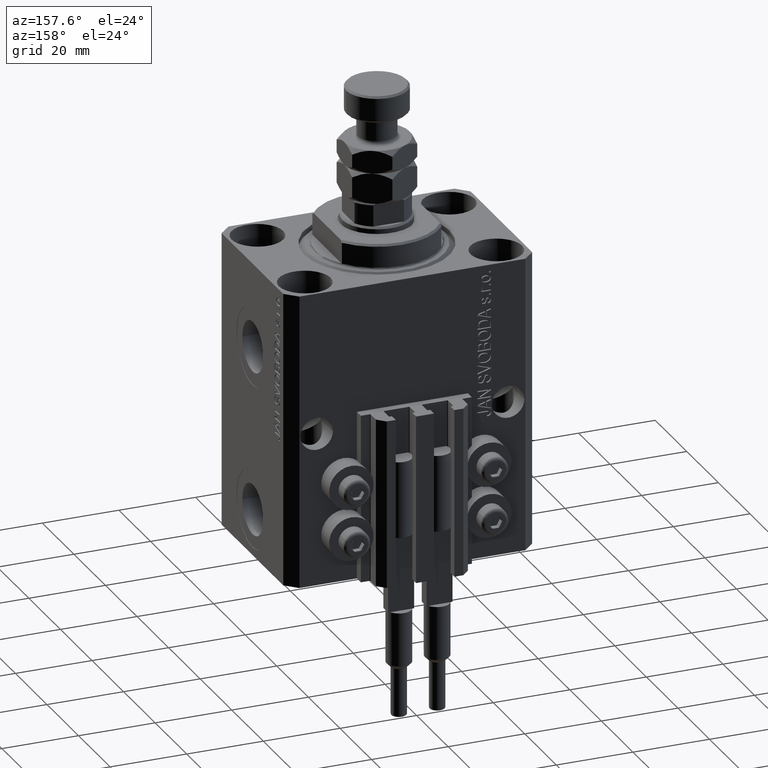
[diagram: clean part render]
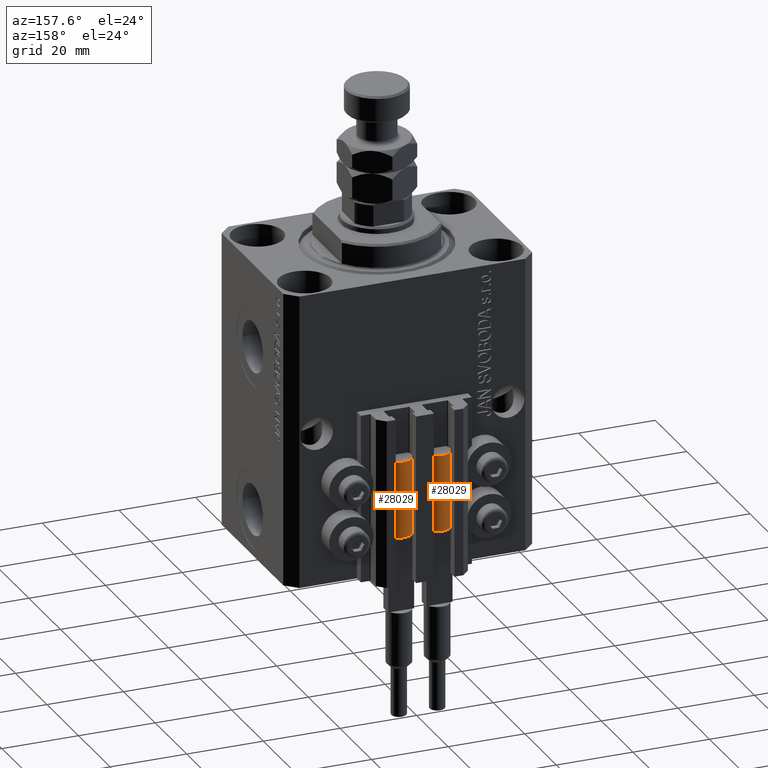
[diagram: same view with one multi-face feature highlighted, each face labeled with its STEP entity id]
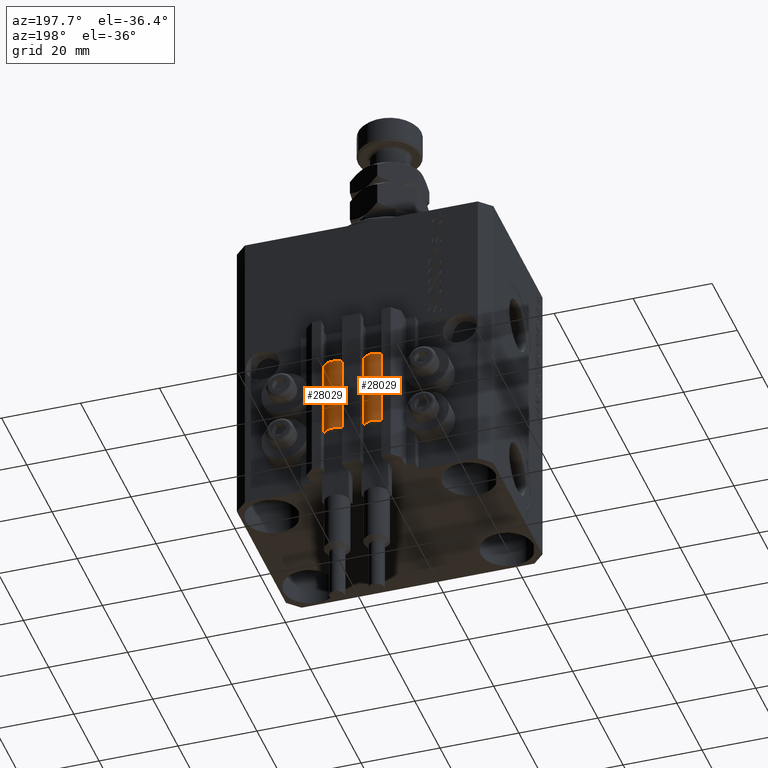
[diagram: same view with one multi-face feature highlighted, each face labeled with its STEP entity id]
A machine part, auxiliary view. The highlighted faces form ONE feature: a constant-radius fillet chain: 2 tangent blend faces with common blend radius 3.4 mm. The faces share edges in the B-rep.
A second angle (auxiliary view) of the same feature is appended — it is thin or edge-on in the first view.
Their STEP definitions:
[1] entity #28029 (Cylinder):
#312 = DIRECTION ( 'NONE',  ( 0.000000000000000000, 0.000000000000000000, 1.000000000000000000 ) ) ;
#2251 = ORIENTED_EDGE ( 'NONE', *, *, #4191, .F. ) ;
#2427 = EDGE_CURVE ( 'NONE', #9915, #5046, #11936, .T. ) ;
#3807 = AXIS2_PLACEMENT_3D ( 'NONE', #39159, #19882, #32049 ) ;
#4191 = EDGE_CURVE ( 'NONE', #5046, #43047, #12688, .T. ) ;
#4888 = EDGE_CURVE ( 'NONE', #9213, #20784, #30876, .T. ) ;
#5046 = VERTEX_POINT ( 'NONE', #47095 ) ;
#5847 = ORIENTED_EDGE ( 'NONE', *, *, #2427, .F. ) ;
#8031 = CARTESIAN_POINT ( 'NONE',  ( 3.400000000000000355, 4.163799117101001052E-16, 20.00000000000000000 ) ) ;
#8042 = ORIENTED_EDGE ( 'NONE', *, *, #47203, .T. ) ;
#8064 = VERTEX_POINT ( 'NONE', #30841 ) ;
#8618 = AXIS2_PLACEMENT_3D ( 'NONE', #23859, #35514, #11439 ) ;
#9213 = VERTEX_POINT ( 'NONE', #19921 ) ;
#9784 = CARTESIAN_POINT ( 'NONE',  ( 0.000000000000000000, 0.000000000000000000, 20.00000000000000000 ) ) ;
#9915 = VERTEX_POINT ( 'NONE', #46897 ) ;
#10732 = EDGE_LOOP ( 'NONE', ( #5847, #8042, #39282, #45094, #19972, #2251 ) ) ;
#11439 = DIRECTION ( 'NONE',  ( 1.000000000000000000, 0.000000000000000000, 0.000000000000000000 ) ) ;
#11936 = CIRCLE ( 'NONE', #3807, 3.400000000000000355 ) ;
#12688 = CIRCLE ( 'NONE', #15933, 3.400000000000000355 ) ;
#13615 = DIRECTION ( 'NONE',  ( -1.000000000000000000, 0.000000000000000000, 0.000000000000000000 ) ) ;
#15751 = EDGE_CURVE ( 'NONE', #43047, #9213, #43436, .T. ) ;
#15933 = AXIS2_PLACEMENT_3D ( 'NONE', #9784, #29323, #33375 ) ;
#17410 = FACE_OUTER_BOUND ( 'NONE', #10732, .T. ) ;
#18321 = CIRCLE ( 'NONE', #8618, 3.400000000000000355 ) ;
#18670 = VECTOR ( 'NONE', #35681, 1000.000000000000000 ) ;
#18981 = EDGE_CURVE ( 'NONE', #8064, #20784, #18321, .T. ) ;
#19485 = AXIS2_PLACEMENT_3D ( 'NONE', #48351, #31700, #13615 ) ;
#19882 = DIRECTION ( 'NONE',  ( 0.000000000000000000, 0.000000000000000000, 1.000000000000000000 ) ) ;
#19921 = CARTESIAN_POINT ( 'NONE',  ( -3.399999999999999467, -4.915049848600952119E-16, 20.00000000000000000 ) ) ;
#19972 = ORIENTED_EDGE ( 'NONE', *, *, #15751, .F. ) ;
#20784 = VERTEX_POINT ( 'NONE', #20800 ) ;
#20800 = CARTESIAN_POINT ( 'NONE',  ( -3.400000000000000355, 0.000000000000000000, 0.000000000000000000 ) ) ;
#23859 = CARTESIAN_POINT ( 'NONE',  ( 0.000000000000000000, 0.000000000000000000, 0.000000000000000000 ) ) ;
#24019 = LINE ( 'NONE', #8031, #18670 ) ;
#28029 = ADVANCED_FACE ( 'NONE', ( #17410 ), #32881, .T. ) ;
#29323 = DIRECTION ( 'NONE',  ( 0.000000000000000000, 0.000000000000000000, 1.000000000000000000 ) ) ;
#30841 = CARTESIAN_POINT ( 'NONE',  ( 3.400000000000000355, 4.163799117101001052E-16, 0.000000000000000000 ) ) ;
#30876 = LINE ( 'NONE', #46334, #36181 ) ;
#31700 = DIRECTION ( 'NONE',  ( -0.000000000000000000, -0.000000000000000000, -1.000000000000000000 ) ) ;
#32049 = DIRECTION ( 'NONE',  ( 1.000000000000000000, 0.000000000000000000, 0.000000000000000000 ) ) ;
#32881 = CYLINDRICAL_SURFACE ( 'NONE', #19485, 3.400000000000000355 ) ;
#33375 = DIRECTION ( 'NONE',  ( 1.000000000000000000, 0.000000000000000000, 0.000000000000000000 ) ) ;
#34420 = DIRECTION ( 'NONE',  ( -0.000000000000000000, -0.000000000000000000, -1.000000000000000000 ) ) ;
#34823 = CARTESIAN_POINT ( 'NONE',  ( 0.000000000000000000, 0.000000000000000000, 20.00000000000000000 ) ) ;
#35514 = DIRECTION ( 'NONE',  ( 0.000000000000000000, 0.000000000000000000, 1.000000000000000000 ) ) ;
#35681 = DIRECTION ( 'NONE',  ( -0.000000000000000000, -0.000000000000000000, -1.000000000000000000 ) ) ;
#36181 = VECTOR ( 'NONE', #34420, 1000.000000000000000 ) ;
#39159 = CARTESIAN_POINT ( 'NONE',  ( 0.000000000000000000, 0.000000000000000000, 20.00000000000000000 ) ) ;
#39282 = ORIENTED_EDGE ( 'NONE', *, *, #18981, .T. ) ;
#39635 = DIRECTION ( 'NONE',  ( 1.000000000000000000, 0.000000000000000000, 0.000000000000000000 ) ) ;
#41046 = AXIS2_PLACEMENT_3D ( 'NONE', #34823, #312, #39635 ) ;
#42591 = CARTESIAN_POINT ( 'NONE',  ( -3.051229260478471428, 1.500000000000000000, 20.00000000000000000 ) ) ;
#43047 = VERTEX_POINT ( 'NONE', #42591 ) ;
#43436 = CIRCLE ( 'NONE', #41046, 3.400000000000000355 ) ;
#45094 = ORIENTED_EDGE ( 'NONE', *, *, #4888, .F. ) ;
#46334 = CARTESIAN_POINT ( 'NONE',  ( -3.400000000000000355, 0.000000000000000000, 20.00000000000000000 ) ) ;
#46897 = CARTESIAN_POINT ( 'NONE',  ( 3.400000000000000355, 0.000000000000000000, 20.00000000000000000 ) ) ;
#47095 = CARTESIAN_POINT ( 'NONE',  ( 3.051229260478471428, 1.500000000000000000, 20.00000000000000000 ) ) ;
#47203 = EDGE_CURVE ( 'NONE', #9915, #8064, #24019, .T. ) ;
#48351 = CARTESIAN_POINT ( 'NONE',  ( 0.000000000000000000, 0.000000000000000000, 20.00000000000000000 ) ) ;
[2] entity #28029 (Cylinder):
#312 = DIRECTION ( 'NONE',  ( 0.000000000000000000, 0.000000000000000000, 1.000000000000000000 ) ) ;
#2251 = ORIENTED_EDGE ( 'NONE', *, *, #4191, .F. ) ;
#2427 = EDGE_CURVE ( 'NONE', #9915, #5046, #11936, .T. ) ;
#3807 = AXIS2_PLACEMENT_3D ( 'NONE', #39159, #19882, #32049 ) ;
#4191 = EDGE_CURVE ( 'NONE', #5046, #43047, #12688, .T. ) ;
#4888 = EDGE_CURVE ( 'NONE', #9213, #20784, #30876, .T. ) ;
#5046 = VERTEX_POINT ( 'NONE', #47095 ) ;
#5847 = ORIENTED_EDGE ( 'NONE', *, *, #2427, .F. ) ;
#8031 = CARTESIAN_POINT ( 'NONE',  ( 3.400000000000000355, 4.163799117101001052E-16, 20.00000000000000000 ) ) ;
#8042 = ORIENTED_EDGE ( 'NONE', *, *, #47203, .T. ) ;
#8064 = VERTEX_POINT ( 'NONE', #30841 ) ;
#8618 = AXIS2_PLACEMENT_3D ( 'NONE', #23859, #35514, #11439 ) ;
#9213 = VERTEX_POINT ( 'NONE', #19921 ) ;
#9784 = CARTESIAN_POINT ( 'NONE',  ( 0.000000000000000000, 0.000000000000000000, 20.00000000000000000 ) ) ;
#9915 = VERTEX_POINT ( 'NONE', #46897 ) ;
#10732 = EDGE_LOOP ( 'NONE', ( #5847, #8042, #39282, #45094, #19972, #2251 ) ) ;
#11439 = DIRECTION ( 'NONE',  ( 1.000000000000000000, 0.000000000000000000, 0.000000000000000000 ) ) ;
#11936 = CIRCLE ( 'NONE', #3807, 3.400000000000000355 ) ;
#12688 = CIRCLE ( 'NONE', #15933, 3.400000000000000355 ) ;
#13615 = DIRECTION ( 'NONE',  ( -1.000000000000000000, 0.000000000000000000, 0.000000000000000000 ) ) ;
#15751 = EDGE_CURVE ( 'NONE', #43047, #9213, #43436, .T. ) ;
#15933 = AXIS2_PLACEMENT_3D ( 'NONE', #9784, #29323, #33375 ) ;
#17410 = FACE_OUTER_BOUND ( 'NONE', #10732, .T. ) ;
#18321 = CIRCLE ( 'NONE', #8618, 3.400000000000000355 ) ;
#18670 = VECTOR ( 'NONE', #35681, 1000.000000000000000 ) ;
#18981 = EDGE_CURVE ( 'NONE', #8064, #20784, #18321, .T. ) ;
#19485 = AXIS2_PLACEMENT_3D ( 'NONE', #48351, #31700, #13615 ) ;
#19882 = DIRECTION ( 'NONE',  ( 0.000000000000000000, 0.000000000000000000, 1.000000000000000000 ) ) ;
#19921 = CARTESIAN_POINT ( 'NONE',  ( -3.399999999999999467, -4.915049848600952119E-16, 20.00000000000000000 ) ) ;
#19972 = ORIENTED_EDGE ( 'NONE', *, *, #15751, .F. ) ;
#20784 = VERTEX_POINT ( 'NONE', #20800 ) ;
#20800 = CARTESIAN_POINT ( 'NONE',  ( -3.400000000000000355, 0.000000000000000000, 0.000000000000000000 ) ) ;
#23859 = CARTESIAN_POINT ( 'NONE',  ( 0.000000000000000000, 0.000000000000000000, 0.000000000000000000 ) ) ;
#24019 = LINE ( 'NONE', #8031, #18670 ) ;
#28029 = ADVANCED_FACE ( 'NONE', ( #17410 ), #32881, .T. ) ;
#29323 = DIRECTION ( 'NONE',  ( 0.000000000000000000, 0.000000000000000000, 1.000000000000000000 ) ) ;
#30841 = CARTESIAN_POINT ( 'NONE',  ( 3.400000000000000355, 4.163799117101001052E-16, 0.000000000000000000 ) ) ;
#30876 = LINE ( 'NONE', #46334, #36181 ) ;
#31700 = DIRECTION ( 'NONE',  ( -0.000000000000000000, -0.000000000000000000, -1.000000000000000000 ) ) ;
#32049 = DIRECTION ( 'NONE',  ( 1.000000000000000000, 0.000000000000000000, 0.000000000000000000 ) ) ;
#32881 = CYLINDRICAL_SURFACE ( 'NONE', #19485, 3.400000000000000355 ) ;
#33375 = DIRECTION ( 'NONE',  ( 1.000000000000000000, 0.000000000000000000, 0.000000000000000000 ) ) ;
#34420 = DIRECTION ( 'NONE',  ( -0.000000000000000000, -0.000000000000000000, -1.000000000000000000 ) ) ;
#34823 = CARTESIAN_POINT ( 'NONE',  ( 0.000000000000000000, 0.000000000000000000, 20.00000000000000000 ) ) ;
#35514 = DIRECTION ( 'NONE',  ( 0.000000000000000000, 0.000000000000000000, 1.000000000000000000 ) ) ;
#35681 = DIRECTION ( 'NONE',  ( -0.000000000000000000, -0.000000000000000000, -1.000000000000000000 ) ) ;
#36181 = VECTOR ( 'NONE', #34420, 1000.000000000000000 ) ;
#39159 = CARTESIAN_POINT ( 'NONE',  ( 0.000000000000000000, 0.000000000000000000, 20.00000000000000000 ) ) ;
#39282 = ORIENTED_EDGE ( 'NONE', *, *, #18981, .T. ) ;
#39635 = DIRECTION ( 'NONE',  ( 1.000000000000000000, 0.000000000000000000, 0.000000000000000000 ) ) ;
#41046 = AXIS2_PLACEMENT_3D ( 'NONE', #34823, #312, #39635 ) ;
#42591 = CARTESIAN_POINT ( 'NONE',  ( -3.051229260478471428, 1.500000000000000000, 20.00000000000000000 ) ) ;
#43047 = VERTEX_POINT ( 'NONE', #42591 ) ;
#43436 = CIRCLE ( 'NONE', #41046, 3.400000000000000355 ) ;
#45094 = ORIENTED_EDGE ( 'NONE', *, *, #4888, .F. ) ;
#46334 = CARTESIAN_POINT ( 'NONE',  ( -3.400000000000000355, 0.000000000000000000, 20.00000000000000000 ) ) ;
#46897 = CARTESIAN_POINT ( 'NONE',  ( 3.400000000000000355, 0.000000000000000000, 20.00000000000000000 ) ) ;
#47095 = CARTESIAN_POINT ( 'NONE',  ( 3.051229260478471428, 1.500000000000000000, 20.00000000000000000 ) ) ;
#47203 = EDGE_CURVE ( 'NONE', #9915, #8064, #24019, .T. ) ;
#48351 = CARTESIAN_POINT ( 'NONE',  ( 0.000000000000000000, 0.000000000000000000, 20.00000000000000000 ) ) ;